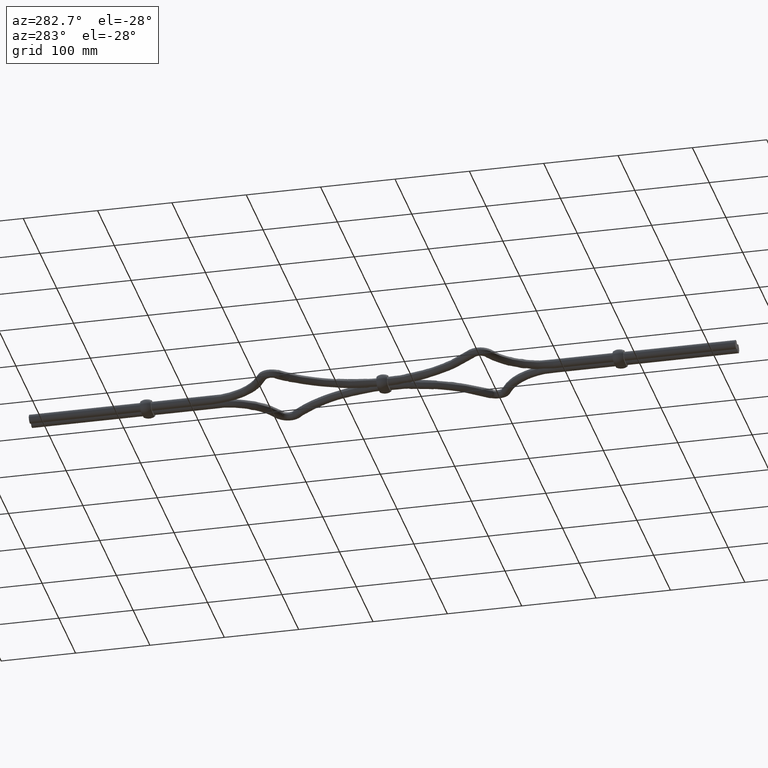
[diagram: clean part render]
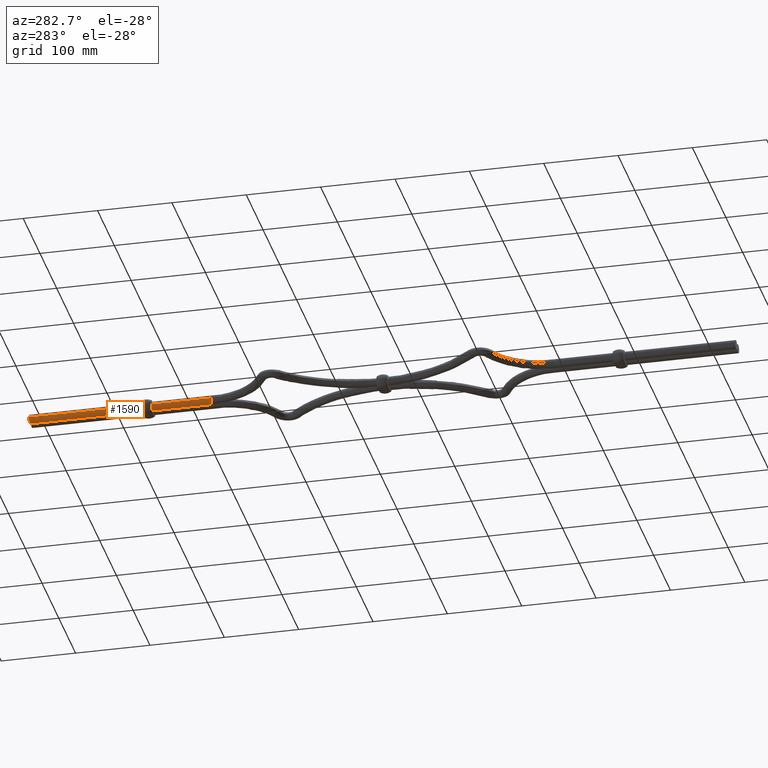
[diagram: same view with one face highlighted and labeled with its STEP entity id]
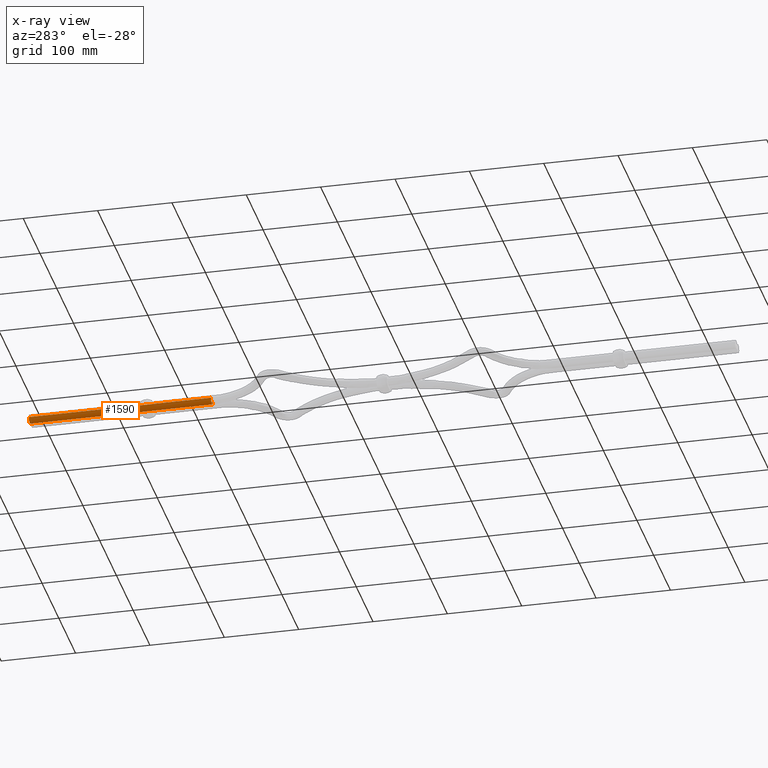
[diagram: x-ray of the same camera — body ghosted, the highlighted face saturated]
A machine part, auxiliary view. The second image highlights one B-rep face of the part: STEP entity #1590.
The next image is the same camera in x-ray: the body ghosted, the highlighted face saturated — about 0% of this face is hidden behind the body in this view.
In plain terms, the highlighted face is a freeform B-spline surface patch.
Its self-contained STEP definition (entity closure, byte-faithful):
#73 = CARTESIAN_POINT ( 'NONE',  ( -11.99974757099841900, 679.9632569764643200, 1.444160404235215700E-011 ) ) ;
#268 = B_SPLINE_CURVE_WITH_KNOTS ( 'NONE', 3,
 ( #13442, #4331, #14757, #6943, #16051, #8256, #388, #9570, #1728, #10883, #3063, #12183, #4387, #13500, #5701, #14810, #6998, #16105, #8314, #439, #9630, #1789, #10936 ),
 .UNSPECIFIED., .F., .F.,
 ( 4, 2, 2, 2, 2, 2, 2, 2, 1, 2, 2, 4 ),
 ( 0.0000000000000000000, 0.001172662228733373700, 0.001758993343100058900, 0.002345324457466744800, 0.003517986686200114400, 0.004690648914933484400, 0.005863311143666853100, 0.006449642258033538300, 0.007035973372400222700, 0.007622304486766907900, 0.008208635601133593100, 0.009381297829866961900 ),
 .UNSPECIFIED. ) ;
#380 = ORIENTED_EDGE ( 'NONE', *, *, #6586, .T. ) ;
#388 = CARTESIAN_POINT ( 'NONE',  ( -3.883696369776233700, 925.0000000000001100, -5.617790925091035200 ) ) ;
#439 = CARTESIAN_POINT ( 'NONE',  ( -0.1535243363638820700, 924.9999999999998900, -1.361924880915949700 ) ) ;
#634 = CARTESIAN_POINT ( 'NONE',  ( -11.99974757099841900, 679.9632569764643200, 7.111164825746169200E-016 ) ) ;
#1479 = CARTESIAN_POINT ( 'NONE',  ( -0.0002524290130245753700, 680.0367430251923200, 2.367159692549194200E-017 ) ) ;
#1590 = ADVANCED_FACE ( 'NONE', ( #11965 ), #14738, .F. ) ;
#1664 = CARTESIAN_POINT ( 'NONE',  ( -0.0002524290130245753200, 680.0367430251924400, -12.00000000012996500 ) ) ;
#1728 = CARTESIAN_POINT ( 'NONE',  ( -2.993907372549185400, 924.9999999999995500, -5.207350706483810900 ) ) ;
#1789 = CARTESIAN_POINT ( 'NONE',  ( -0.0002524290098539592600, 924.9999999999995500, -0.3914300701315026600 ) ) ;
#2994 = CARTESIAN_POINT ( 'NONE',  ( -0.0002524290130245753700, 680.0367430251923200, 2.367159692549194200E-017 ) ) ;
#3063 = CARTESIAN_POINT ( 'NONE',  ( -2.032737745134133100, 925.0000000000004500, -4.518054221813814700 ) ) ;
#3467 = CARTESIAN_POINT ( 'NONE',  ( -0.0002524290098539763900, 924.9999999999994300, 2.367159692549194200E-017 ) ) ;
#3816 = CARTESIAN_POINT ( 'NONE',  ( -11.99974757103837100, 924.9632569756469100, -11.99999999999999800 ) ) ;
#4331 = CARTESIAN_POINT ( 'NONE',  ( -5.603484543128104200, 925.0000000000000000, -6.000000000119113600 ) ) ;
#4387 = CARTESIAN_POINT ( 'NONE',  ( -1.230879934206135600, 925.0000000000000000, -3.661876140640320600 ) ) ;
#4725 = CARTESIAN_POINT ( 'NONE',  ( -0.0002524290130245753700, 680.0367430251923200, 2.367159692549194200E-017 ) ) ;
#5135 = CARTESIAN_POINT ( 'NONE',  ( -11.99974757099519900, 924.9632569756472500, -2.999999999309402200 ) ) ;
#5214 = VERTEX_POINT ( 'NONE', #3467 ) ;
#5566 = CARTESIAN_POINT ( 'NONE',  ( -0.0002524290130245753700, 680.0367430251923200, 2.367159692549194200E-017 ) ) ;
#5628 = CARTESIAN_POINT ( 'NONE',  ( -11.99974757099822200, 679.9632569764643200, -11.99999999999999800 ) ) ;
#5649 = VERTEX_POINT ( 'NONE', #14790 ) ;
#5701 = CARTESIAN_POINT ( 'NONE',  ( -0.7998711461591079300, 925.0000000000000000, -2.999161666293646900 ) ) ;
#6586 = EDGE_CURVE ( 'NONE', #10593, #5649, #11090, .T. ) ;
#6863 = DIRECTION ( 'NONE',  ( 1.294316128202522400E-014, 1.000000000000000000, 0.0000000000000000000 ) ) ;
#6868 = ORIENTED_EDGE ( 'NONE', *, *, #10833, .T. ) ;
#6943 = CARTESIAN_POINT ( 'NONE',  ( -4.638304166631360900, 924.9999999999998900, -5.846696402840804800 ) ) ;
#6998 = CARTESIAN_POINT ( 'NONE',  ( -0.4477113949119543300, 924.9999999999995500, -2.298675192661446200 ) ) ;
#7186 = DIRECTION ( 'NONE',  ( 1.294316128202522400E-014, 1.000000000000000000, 0.0000000000000000000 ) ) ;
#7691 = ORIENTED_EDGE ( 'NONE', *, *, #10398, .T. ) ;
#7733 = CARTESIAN_POINT ( 'NONE',  ( -0.0002524290098535008100, 925.0367430243750300, -12.00000000012996500 ) ) ;
#7793 = LINE ( 'NONE', #5566, #14324 ) ;
#8032 = LINE ( 'NONE', #634, #14954 ) ;
#8256 = CARTESIAN_POINT ( 'NONE',  ( -4.071089876957350000, 924.9999999999997700, -5.684874948648379200 ) ) ;
#8314 = CARTESIAN_POINT ( 'NONE',  ( -0.2017929307644688300, 924.9999999999996600, -1.554514096073823300 ) ) ;
#8752 = CARTESIAN_POINT ( 'NONE',  ( -11.99974757099524700, 924.9632569756471400, 7.111164825746169200E-016 ) ) ;
#9063 = CARTESIAN_POINT ( 'NONE',  ( -6.000000001844012900, 924.9999999999997700, -6.000000000000000000 ) ) ;
#9302 = EDGE_CURVE ( 'NONE', #16414, #13234, #11300, .T. ) ;
#9570 = CARTESIAN_POINT ( 'NONE',  ( -3.338605830876201900, 925.0000000000003400, -5.391767456023830900 ) ) ;
#9630 = CARTESIAN_POINT ( 'NONE',  ( -0.03818487146212691500, 925.0000000000000000, -0.7808603741718569400 ) ) ;
#10368 = CARTESIAN_POINT ( 'NONE',  ( -11.99974757099524700, 924.9632569756471400, 7.111164825746169200E-016 ) ) ;
#10398 = EDGE_CURVE ( 'NONE', #16414, #5214, #268, .T. ) ;
#10593 = VERTEX_POINT ( 'NONE', #4725 ) ;
#10833 = EDGE_CURVE ( 'NONE', #5649, #13234, #8032, .T. ) ;
#10883 = CARTESIAN_POINT ( 'NONE',  ( -2.341569270536351800, 924.9999999999995500, -4.771646783465830500 ) ) ;
#10936 = CARTESIAN_POINT ( 'NONE',  ( -0.0002524290098539763900, 924.9999999999994300, 2.367159692549194200E-017 ) ) ;
#11090 =( BOUNDED_CURVE ( )  B_SPLINE_CURVE ( 3, ( #2994, #13314, #5628, #14744 ),
 .UNSPECIFIED., .F., .F. ) 
 B_SPLINE_CURVE_WITH_KNOTS ( ( 4, 4 ),
 ( 0.0000000000000000000, 0.5000000000000000000 ),
 .UNSPECIFIED. ) 
 CURVE ( )  GEOMETRIC_REPRESENTATION_ITEM ( )  RATIONAL_B_SPLINE_CURVE ( ( 1.000000000000000000, 0.3333333333333333700, 0.3333333333333333700, 1.000000000000000000 ) ) 
 REPRESENTATION_ITEM ( '' )  );
#11300 =( BOUNDED_CURVE ( )  B_SPLINE_CURVE ( 3, ( #9063, #15550, #5135, #10368 ),
 .UNSPECIFIED., .F., .T. ) 
 B_SPLINE_CURVE_WITH_KNOTS ( ( 4, 4 ),
 ( 0.2500000000383664800, 0.5000000000000000000 ),
 .UNSPECIFIED. ) 
 CURVE ( )  GEOMETRIC_REPRESENTATION_ITEM ( )  RATIONAL_B_SPLINE_CURVE ( ( 0.5000000000000000000, 0.5000000000511553000, 0.6666666667178220400, 1.000000000000000000 ) ) 
 REPRESENTATION_ITEM ( '' )  );
#11891 = CARTESIAN_POINT ( 'NONE',  ( -11.99974757104154400, 679.9632569764639800, -11.99999999999999800 ) ) ;
#11965 = FACE_OUTER_BOUND ( 'NONE', #15882, .T. ) ;
#12114 = CARTESIAN_POINT ( 'NONE',  ( -0.0002524290098535008600, 925.0367430243752600, 2.367159692549194200E-017 ) ) ;
#12183 = CARTESIAN_POINT ( 'NONE',  ( -1.479234164685642400, 925.0000000000008000, -3.964122181600564100 ) ) ;
#12361 = EDGE_CURVE ( 'NONE', #10593, #5214, #7793, .T. ) ;
#12922 = CARTESIAN_POINT ( 'NONE',  ( -11.99974757099524900, 924.9632569756472500, 1.444160404235215700E-011 ) ) ;
#13045 = ORIENTED_EDGE ( 'NONE', *, *, #9302, .F. ) ;
#13125 = ORIENTED_EDGE ( 'NONE', *, *, #12361, .F. ) ;
#13234 = VERTEX_POINT ( 'NONE', #8752 ) ;
#13314 = CARTESIAN_POINT ( 'NONE',  ( -0.0002524290130245753200, 680.0367430251923200, -11.99999999999999800 ) ) ;
#13442 = CARTESIAN_POINT ( 'NONE',  ( -6.000000001844012900, 924.9999999999997700, -6.000000000000000000 ) ) ;
#13500 = CARTESIAN_POINT ( 'NONE',  ( -0.9019696303125678300, 925.0000000000000000, -3.169674839496113600 ) ) ;
#14072 = CARTESIAN_POINT ( 'NONE',  ( -6.000000001844012900, 924.9999999999997700, -6.000000000000000000 ) ) ;
#14324 = VECTOR ( 'NONE', #6863, 1000.000000000000000 ) ;
#14738 =( BOUNDED_SURFACE ( )  B_SPLINE_SURFACE ( 3, 1, ( 
 ( #73, #12922 ),
 ( #11891, #3816 ),
 ( #1664, #7733 ),
 ( #1479, #12114 ) ),
 .UNSPECIFIED., .F., .F., .F. ) 
 B_SPLINE_SURFACE_WITH_KNOTS ( ( 4, 4 ),
 ( 2, 2 ),
 ( 0.5000000000000000000, 1.000000000000000000 ),
 ( 0.0000000000000000000, 1.000000000000000000 ),
 .UNSPECIFIED. ) 
 GEOMETRIC_REPRESENTATION_ITEM ( )  RATIONAL_B_SPLINE_SURFACE ( (
 ( 1.000000000002406700, 1.000000000002406700),
 ( 0.3333333333333333700, 0.3333333333333333700),
 ( 0.3333333333309265700, 0.3333333333309265700),
 ( 1.000000000000000000, 1.000000000000000000) ) ) 
 REPRESENTATION_ITEM ( '' )  SURFACE ( )  );
#14744 = CARTESIAN_POINT ( 'NONE',  ( -11.99974757099841900, 679.9632569764643200, 7.111164825746169200E-016 ) ) ;
#14757 = CARTESIAN_POINT ( 'NONE',  ( -5.213597810132917200, 925.0000000000000000, -5.961077180421934700 ) ) ;
#14790 = CARTESIAN_POINT ( 'NONE',  ( -11.99974757099841900, 679.9632569764643200, 7.111164825746169200E-016 ) ) ;
#14810 = CARTESIAN_POINT ( 'NONE',  ( -0.6148461336000049500, 924.9999999999995500, -2.652595676747508100 ) ) ;
#14954 = VECTOR ( 'NONE', #7186, 1000.000000000000000 ) ;
#15550 = CARTESIAN_POINT ( 'NONE',  ( -9.999831714816068000, 924.9755046504301400, -5.999999998772271000 ) ) ;
#15882 = EDGE_LOOP ( 'NONE', ( #380, #6868, #13045, #7691, #13125 ) ) ;
#16051 = CARTESIAN_POINT ( 'NONE',  ( -4.448140854839706100, 925.0000000000000000, -5.799167274418516100 ) ) ;
#16105 = CARTESIAN_POINT ( 'NONE',  ( -0.3158201381232838600, 924.9999999999995500, -1.930266501348137500 ) ) ;
#16414 = VERTEX_POINT ( 'NONE', #14072 ) ;